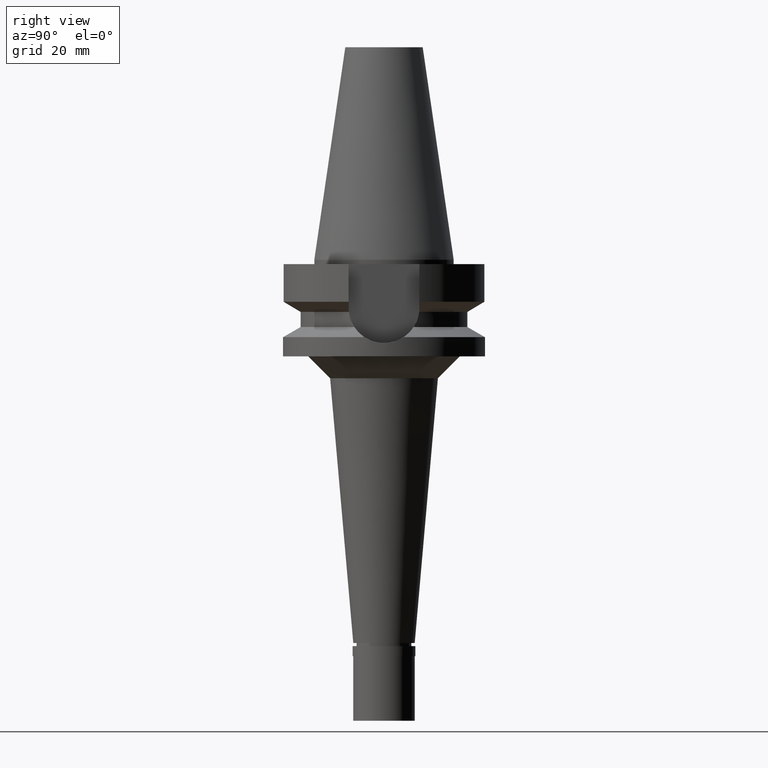
[diagram: clean part render]
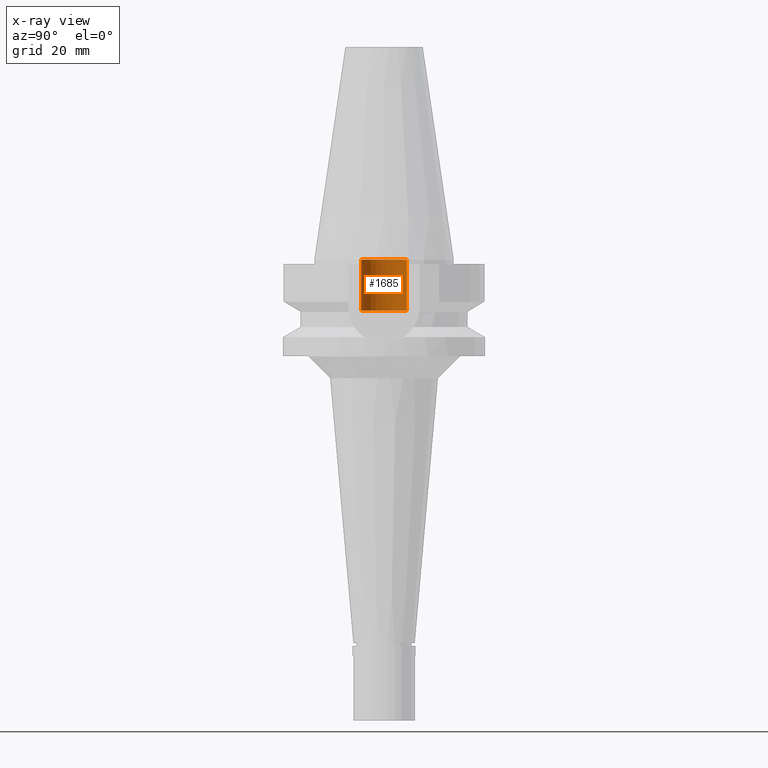
[diagram: x-ray — body ghosted, one internal face saturated and labeled with its STEP entity id]
A machine part, right view, then the same camera in x-ray: the body is ghosted and one INTERNAL B-rep face — a face not visible from any outside direction — is saturated and labeled: STEP entity #1685.
In plain terms, the highlighted cylindrical surface (edge-blend (fillet) strip) has radius 5.2 mm, axis along (0, 0, -1).
Its self-contained STEP definition (entity closure, byte-faithful):
#282 = CARTESIAN_POINT ( 'NONE',  ( 0.0000000000000000000, 5.200000000000000178, -11.59999999999999964 ) ) ;
#368 = EDGE_CURVE ( 'NONE', #1387, #432, #1520, .T. ) ;
#413 = VERTEX_POINT ( 'NONE', #1069 ) ;
#432 = VERTEX_POINT ( 'NONE', #820 ) ;
#485 = FACE_OUTER_BOUND ( 'NONE', #2393, .T. ) ;
#800 = EDGE_CURVE ( 'NONE', #1277, #432, #1474, .T. ) ;
#820 = CARTESIAN_POINT ( 'NONE',  ( 0.0000000000000000000, 5.200000000000000178, 9.237055564880999494E-14 ) ) ;
#854 = CARTESIAN_POINT ( 'NONE',  ( 0.0000000000000000000, 5.200000000000000178, -11.59999999999999964 ) ) ;
#895 = DIRECTION ( 'NONE',  ( 0.0000000000000000000, 0.0000000000000000000, 1.000000000000000000 ) ) ;
#906 = LINE ( 'NONE', #1383, #2309 ) ;
#908 = DIRECTION ( 'NONE',  ( 0.0000000000000000000, 0.0000000000000000000, -1.000000000000000000 ) ) ;
#1025 = EDGE_CURVE ( 'NONE', #413, #1387, #2573, .T. ) ;
#1046 = DIRECTION ( 'NONE',  ( 0.0000000000000000000, -1.000000000000000000, 0.0000000000000000000 ) ) ;
#1069 = CARTESIAN_POINT ( 'NONE',  ( 0.0000000000000000000, -5.200000000000000178, -11.59999999999999964 ) ) ;
#1277 = VERTEX_POINT ( 'NONE', #1847 ) ;
#1380 = VECTOR ( 'NONE', #1770, 1000.000000000000000 ) ;
#1383 = CARTESIAN_POINT ( 'NONE',  ( 0.0000000000000000000, -5.200000000000000178, -11.59999999999999964 ) ) ;
#1387 = VERTEX_POINT ( 'NONE', #282 ) ;
#1394 = CYLINDRICAL_SURFACE ( 'NONE', #1417, 5.200000000000000178 ) ;
#1417 = AXIS2_PLACEMENT_3D ( 'NONE', #1862, #1889, #2727 ) ;
#1474 = CIRCLE ( 'NONE', #1610, 5.200000000000000178 ) ;
#1520 = LINE ( 'NONE', #854, #1380 ) ;
#1610 = AXIS2_PLACEMENT_3D ( 'NONE', #2628, #2407, #1046 ) ;
#1685 = ADVANCED_FACE ( 'NONE', ( #485 ), #1394, .F. ) ;
#1707 = ORIENTED_EDGE ( 'NONE', *, *, #800, .F. ) ;
#1770 = DIRECTION ( 'NONE',  ( 0.0000000000000000000, 0.0000000000000000000, 1.000000000000000000 ) ) ;
#1847 = CARTESIAN_POINT ( 'NONE',  ( 0.0000000000000000000, -5.200000000000000178, 9.237055564880999494E-14 ) ) ;
#1862 = CARTESIAN_POINT ( 'NONE',  ( 0.0000000000000000000, 1.908856965831000054E-14, 55.87000000000000455 ) ) ;
#1889 = DIRECTION ( 'NONE',  ( 0.0000000000000000000, 0.0000000000000000000, -1.000000000000000000 ) ) ;
#2195 = ORIENTED_EDGE ( 'NONE', *, *, #1025, .T. ) ;
#2261 = CARTESIAN_POINT ( 'NONE',  ( 0.0000000000000000000, 1.908856965831000054E-14, -11.59999999999999964 ) ) ;
#2285 = AXIS2_PLACEMENT_3D ( 'NONE', #2261, #908, #2451 ) ;
#2293 = ORIENTED_EDGE ( 'NONE', *, *, #2796, .F. ) ;
#2309 = VECTOR ( 'NONE', #895, 1000.000000000000000 ) ;
#2393 = EDGE_LOOP ( 'NONE', ( #1707, #2293, #2195, #2484 ) ) ;
#2407 = DIRECTION ( 'NONE',  ( 0.0000000000000000000, 0.0000000000000000000, -1.000000000000000000 ) ) ;
#2451 = DIRECTION ( 'NONE',  ( 0.0000000000000000000, -1.000000000000000000, 0.0000000000000000000 ) ) ;
#2484 = ORIENTED_EDGE ( 'NONE', *, *, #368, .T. ) ;
#2573 = CIRCLE ( 'NONE', #2285, 5.200000000000000178 ) ;
#2628 = CARTESIAN_POINT ( 'NONE',  ( 0.0000000000000000000, 1.908856965831000054E-14, 9.947598300640998705E-14 ) ) ;
#2727 = DIRECTION ( 'NONE',  ( 0.0000000000000000000, -1.000000000000000000, 0.0000000000000000000 ) ) ;
#2796 = EDGE_CURVE ( 'NONE', #413, #1277, #906, .T. ) ;